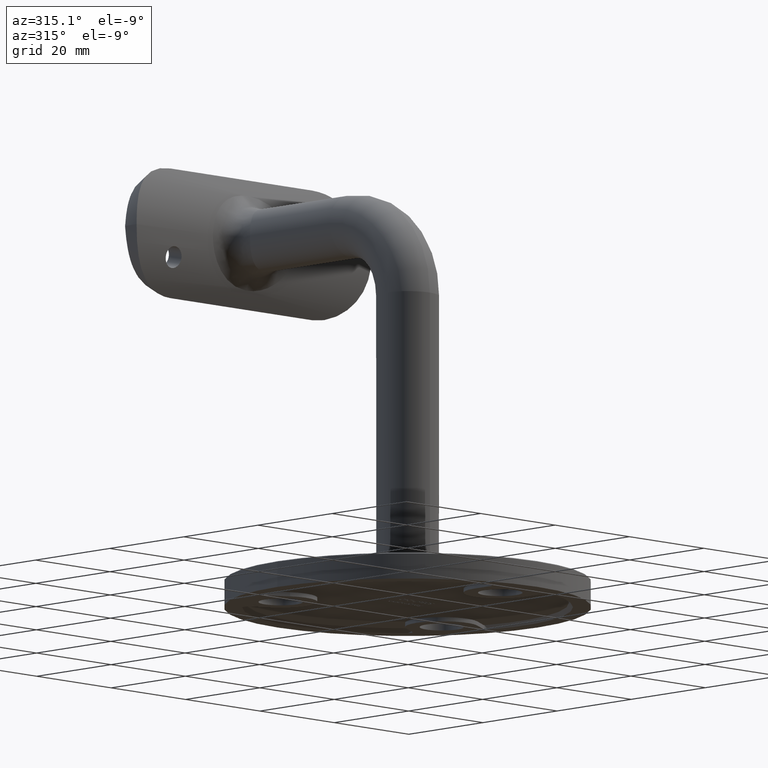
[diagram: clean part render]
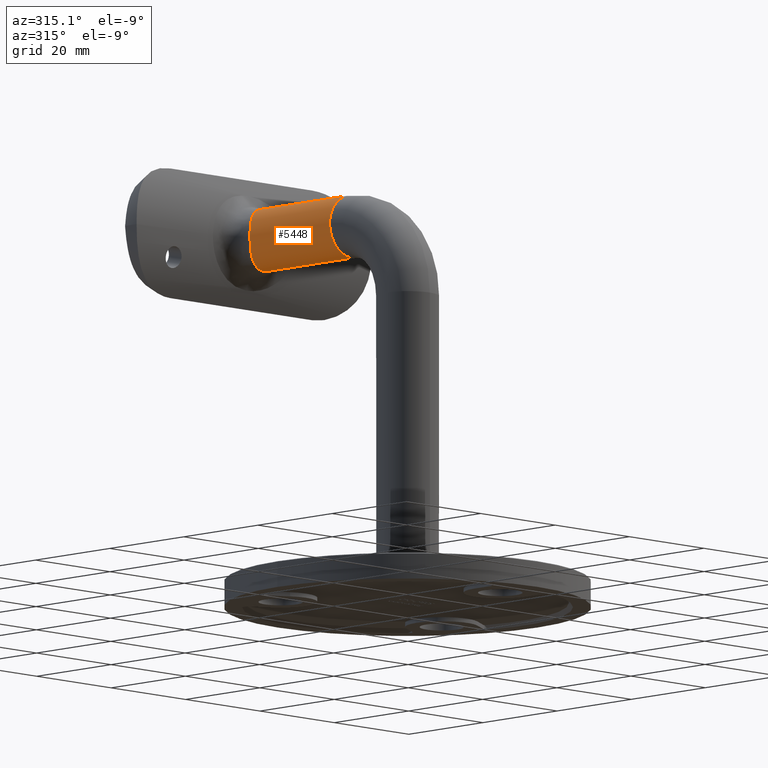
[diagram: same view with one face highlighted and labeled with its STEP entity id]
A machine part, auxiliary view. The second image highlights one B-rep face of the part: STEP entity #5448.
In plain terms, the highlighted cylindrical surface (edge-blend (fillet) strip) has radius 6 mm, axis along (0, 1, 0).
Its self-contained STEP definition (entity closure, byte-faithful):
#111 = VERTEX_POINT ( 'NONE', #10237 ) ;
#252 = CARTESIAN_POINT ( 'NONE',  ( -4.834987868941339251, 37.22530878344944938, 71.42651972095458746 ) ) ;
#366 = CARTESIAN_POINT ( 'NONE',  ( -2.844369645659309054, 38.13084840488732397, 69.70288800839429655 ) ) ;
#420 = CARTESIAN_POINT ( 'NONE',  ( -4.723064486245656113, 37.28760060813537081, 78.71971885719437978 ) ) ;
#717 = CARTESIAN_POINT ( 'NONE',  ( 9.322307052662990449E-12, 38.61214035123418142, 81.00000000000000000 ) ) ;
#882 = ORIENTED_EDGE ( 'NONE', *, *, #5919, .T. ) ;
#1235 = AXIS2_PLACEMENT_3D ( 'NONE', #6730, #13076, #10747 ) ;
#1429 = CARTESIAN_POINT ( 'NONE',  ( -0.1934281735890575060, 38.60986128792323768, 69.00311868204296673 ) ) ;
#1444 = CARTESIAN_POINT ( 'NONE',  ( -0.4010701509160193301, 38.61214035123464328, 81.00000000000063949 ) ) ;
#1495 = LINE ( 'NONE', #7570, #5604 ) ;
#1501 = CARTESIAN_POINT ( 'NONE',  ( -4.600843046422575355, 37.35513347136213014, 71.13027421717886511 ) ) ;
#1559 = CARTESIAN_POINT ( 'NONE',  ( -3.008869894434837544, 38.06770760278525501, 80.19458664514166912 ) ) ;
#1609 = CARTESIAN_POINT ( 'NONE',  ( -0.9980497563364231217, 38.56039774557462607, 69.07047473937326743 ) ) ;
#1678 = CARTESIAN_POINT ( 'NONE',  ( 7.347880794884114806E-16, 14.99999999999999289, 68.99999999999998579 ) ) ;
#2576 = AXIS2_PLACEMENT_3D ( 'NONE', #8565, #11149, #6263 ) ;
#2693 = CARTESIAN_POINT ( 'NONE',  ( -1.584743950566583015, 38.46861917940739772, 80.80043209367478596 ) ) ;
#2744 = CARTESIAN_POINT ( 'NONE',  ( -5.420908578874317207, 36.87702183995774874, 72.42103868816941770 ) ) ;
#2851 = CARTESIAN_POINT ( 'NONE',  ( -2.316203240864628476, 38.28906518388852476, 69.46170955256062030 ) ) ;
#3422 = EDGE_CURVE ( 'NONE', #14265, #111, #4594, .T. ) ;
#3551 = CARTESIAN_POINT ( 'NONE',  ( -0.06449533802369360191, 38.61195026800508856, 69.00026001296798484 ) ) ;
#3801 = LINE ( 'NONE', #9230, #14007 ) ;
#3848 = ORIENTED_EDGE ( 'NONE', *, *, #3422, .T. ) ;
#3887 = CARTESIAN_POINT ( 'NONE',  ( -4.480586490114449205, 37.41915665066142793, 79.00866022427747737 ) ) ;
#3934 = CARTESIAN_POINT ( 'NONE',  ( -5.864398265270552635, 36.59123916765899054, 73.71598738969331066 ) ) ;
#3990 = CARTESIAN_POINT ( 'NONE',  ( -1.956605565418758408, 38.38747246992172535, 80.68526276026692301 ) ) ;
#4042 = CARTESIAN_POINT ( 'NONE',  ( -5.972969700645025526, 36.51857531232527521, 74.30497874585384466 ) ) ;
#4594 = B_SPLINE_CURVE_WITH_KNOTS ( 'NONE', 3,
 ( #1429, #13909, #7281, #3551, #16080, #16031 ),
 .UNSPECIFIED., .F., .F.,
 ( 4, 2, 4 ),
 ( 0.03846878186573247232, 0.03856392116415899296, 0.03865906046258551360 ),
 .UNSPECIFIED. ) ;
#4752 = EDGE_CURVE ( 'NONE', #5929, #111, #1495, .T. ) ;
#5162 = CARTESIAN_POINT ( 'NONE',  ( -5.146717007962327450, 37.04360897380178130, 78.09003484305809195 ) ) ;
#5333 = CARTESIAN_POINT ( 'NONE',  ( -3.173026244672816354, 38.01087751915451207, 69.89360670694728128 ) ) ;
#5383 = CARTESIAN_POINT ( 'NONE',  ( -5.992578013107441315, 36.50503905798429827, 75.49799344722998740 ) ) ;
#5448 = ADVANCED_FACE ( 'NONE', ( #5982 ), #10107, .T. ) ;
#5506 = B_SPLINE_CURVE_WITH_KNOTS ( 'NONE', 3,
 ( #6383, #1444, #10314, #2693, #3990, #11569, #6491, #1559, #14104, #9113, #6595, #3887, #420, #9164, #5162, #11413, #9012, #14157, #12776, #12878, #5383, #7739, #4042, #3934, #13931, #6433, #7859, #13984, #2744, #9060, #15233, #252, #1501, #12823, #10260, #5333, #366, #2851, #15176, #8947, #14045, #1609, #10372, #7682 ),
 .UNSPECIFIED., .F., .F.,
 ( 4, 2, 2, 2, 2, 2, 2, 2, 2, 2, 2, 2, 2, 2, 2, 2, 2, 2, 2, 2, 2, 4 ),
 ( 0.01934217372542798574, 0.02053758673419700531, 0.02173299974296602488, 0.02233070624735052426, 0.02292841275173502710, 0.02412382576050403279, 0.02531923876927303502, 0.02591694527365753786, 0.02651465177804204071, 0.02771006478681105334, 0.02890547779558005903, 0.03010089080434907166, 0.03069859730873359532, 0.03129630381311812592, 0.03189401031750264959, 0.03249171682188717325, 0.03368712983065623445, 0.03488254283942529566, 0.03607795584819435686, 0.03667566235257888052, 0.03727336885696340418, 0.03846878186573247232 ),
 .UNSPECIFIED. ) ;
#5604 = VECTOR ( 'NONE', #11197, 1000.000000000000000 ) ;
#5621 = CARTESIAN_POINT ( 'NONE',  ( 0.000000000000000000, 14.99999999999999289, 81.00000000000000000 ) ) ;
#5919 = EDGE_CURVE ( 'NONE', #12887, #12116, #3801, .T. ) ;
#5929 = VERTEX_POINT ( 'NONE', #1678 ) ;
#5982 = FACE_OUTER_BOUND ( 'NONE', #7526, .T. ) ;
#6114 = ORIENTED_EDGE ( 'NONE', *, *, #10176, .T. ) ;
#6239 = EDGE_CURVE ( 'NONE', #12887, #5929, #6752, .T. ) ;
#6263 = DIRECTION ( 'NONE',  ( -1.000000000000000000, 0.000000000000000000, 0.000000000000000000 ) ) ;
#6383 = CARTESIAN_POINT ( 'NONE',  ( 9.322307052662990449E-12, 38.61214035123418142, 81.00000000000000000 ) ) ;
#6433 = CARTESIAN_POINT ( 'NONE',  ( -5.708438016061958109, 36.69394556401809382, 73.14188854240512683 ) ) ;
#6491 = CARTESIAN_POINT ( 'NONE',  ( -2.669834678212607226, 38.18295531781130592, 80.37671007648114596 ) ) ;
#6595 = CARTESIAN_POINT ( 'NONE',  ( -3.937837466354695781, 37.68720076736019564, 79.54295588550820639 ) ) ;
#6730 = CARTESIAN_POINT ( 'NONE',  ( 0.000000000000000000, 14.99999999999999289, 75.00000000000000000 ) ) ;
#6752 = CIRCLE ( 'NONE', #2576, 6.000000000000000888 ) ;
#6762 = DIRECTION ( 'NONE',  ( 0.000000000000000000, 1.000000000000000000, 0.000000000000000000 ) ) ;
#7281 = CARTESIAN_POINT ( 'NONE',  ( -0.1289713927560972306, 38.61119041315286893, 69.00129964571759444 ) ) ;
#7526 = EDGE_LOOP ( 'NONE', ( #13682, #10953, #882, #6114, #3848 ) ) ;
#7570 = CARTESIAN_POINT ( 'NONE',  ( 7.347880794884120722E-16, 14.99999999999999289, 68.99999999999998579 ) ) ;
#7682 = CARTESIAN_POINT ( 'NONE',  ( -0.1934281735890575060, 38.60986128792323768, 69.00311868204296673 ) ) ;
#7739 = CARTESIAN_POINT ( 'NONE',  ( -6.005777989833364749, 36.49607717033698862, 74.70063491603751515 ) ) ;
#7859 = CARTESIAN_POINT ( 'NONE',  ( -5.644906916020580034, 36.73516593753215176, 72.95728866805683310 ) ) ;
#8565 = CARTESIAN_POINT ( 'NONE',  ( 0.000000000000000000, 14.99999999999999289, 75.00000000000000000 ) ) ;
#8947 = CARTESIAN_POINT ( 'NONE',  ( -1.762031840447283670, 38.42570256817446506, 69.26120794430543981 ) ) ;
#9012 = CARTESIAN_POINT ( 'NONE',  ( -5.421115619412464781, 36.87680040982204588, 77.57863419562397667 ) ) ;
#9060 = CARTESIAN_POINT ( 'NONE',  ( -5.243854000223400647, 36.98544118468407049, 72.07779424188285589 ) ) ;
#9113 = CARTESIAN_POINT ( 'NONE',  ( -3.645086011846814245, 37.81991107196157742, 79.78089669950796292 ) ) ;
#9164 = CARTESIAN_POINT ( 'NONE',  ( -5.045957392478872094, 37.10301725484234225, 78.25180344159029744 ) ) ;
#9230 = CARTESIAN_POINT ( 'NONE',  ( 0.000000000000000000, 14.99999999999999289, 81.00000000000000000 ) ) ;
#10107 = CYLINDRICAL_SURFACE ( 'NONE', #1235, 6.000000000000005329 ) ;
#10176 = EDGE_CURVE ( 'NONE', #12116, #14265, #5506, .T. ) ;
#10237 = CARTESIAN_POINT ( 'NONE',  ( 0.000000000000000000, 38.61214035123418853, 68.99999999999998579 ) ) ;
#10260 = CARTESIAN_POINT ( 'NONE',  ( -3.789750669153752582, 37.75602660520102916, 70.33297333644162563 ) ) ;
#10314 = CARTESIAN_POINT ( 'NONE',  ( -0.8096359642483333952, 38.58131816973150308, 80.95826446774438523 ) ) ;
#10372 = CARTESIAN_POINT ( 'NONE',  ( -0.5983333917461154394, 38.60032010789561241, 69.01617881658161480 ) ) ;
#10747 = DIRECTION ( 'NONE',  ( 0.000000000000000000, 0.000000000000000000, 1.000000000000000000 ) ) ;
#10953 = ORIENTED_EDGE ( 'NONE', *, *, #6239, .F. ) ;
#11149 = DIRECTION ( 'NONE',  ( 0.000000000000000000, -1.000000000000000000, -6.123233995736766036E-17 ) ) ;
#11197 = DIRECTION ( 'NONE',  ( 0.000000000000000000, 1.000000000000000000, 0.000000000000000000 ) ) ;
#11397 = CARTESIAN_POINT ( 'NONE',  ( -0.1934281735890575060, 38.60986128792323768, 69.00311868204296673 ) ) ;
#11413 = CARTESIAN_POINT ( 'NONE',  ( -5.334098690142938359, 36.93062919942065037, 77.75397938539440190 ) ) ;
#11569 = CARTESIAN_POINT ( 'NONE',  ( -2.493512562821578626, 38.23783104054117388, 80.46077142874773358 ) ) ;
#12116 = VERTEX_POINT ( 'NONE', #717 ) ;
#12776 = CARTESIAN_POINT ( 'NONE',  ( -5.775348691665346479, 36.65041831709399389, 76.67353878433944203 ) ) ;
#12823 = CARTESIAN_POINT ( 'NONE',  ( -4.079486582360319247, 37.62001640592347229, 70.58408292691224517 ) ) ;
#12878 = CARTESIAN_POINT ( 'NONE',  ( -5.944658928444353840, 36.53778011606668485, 75.90355674834276556 ) ) ;
#12887 = VERTEX_POINT ( 'NONE', #5621 ) ;
#13076 = DIRECTION ( 'NONE',  ( 0.000000000000000000, 1.000000000000000000, 0.000000000000000000 ) ) ;
#13682 = ORIENTED_EDGE ( 'NONE', *, *, #4752, .F. ) ;
#13909 = CARTESIAN_POINT ( 'NONE',  ( -0.1612029944232661327, 38.61062064152515916, 69.00207926551641435 ) ) ;
#13931 = CARTESIAN_POINT ( 'NONE',  ( -5.818070370745868303, 36.62205870238211958, 73.52050686614779806 ) ) ;
#13984 = CARTESIAN_POINT ( 'NONE',  ( -5.501143160145685052, 36.82670245729638481, 72.59686296525384819 ) ) ;
#14007 = VECTOR ( 'NONE', #6762, 1000.000000000000000 ) ;
#14045 = CARTESIAN_POINT ( 'NONE',  ( -1.573421397486457263, 38.46395214010239982, 69.20662547481475713 ) ) ;
#14104 = CARTESIAN_POINT ( 'NONE',  ( -3.172193871100879470, 38.00722398837142890, 80.09638031993608820 ) ) ;
#14157 = CARTESIAN_POINT ( 'NONE',  ( -5.654605440322389320, 36.72987593625187230, 77.04373012156533207 ) ) ;
#14265 = VERTEX_POINT ( 'NONE', #11397 ) ;
#15176 = CARTESIAN_POINT ( 'NONE',  ( -2.133164798945173857, 38.33836794876025778, 69.38857429829157297 ) ) ;
#15233 = CARTESIAN_POINT ( 'NONE',  ( -5.146499686495343617, 37.04384541152335686, 71.90965079217774303 ) ) ;
#16031 = CARTESIAN_POINT ( 'NONE',  ( 0.000000000000000000, 38.61214035123418853, 68.99999999999998579 ) ) ;
#16080 = CARTESIAN_POINT ( 'NONE',  ( -0.03221126779319347794, 38.61214035123418853, 68.99999999999998579 ) ) ;